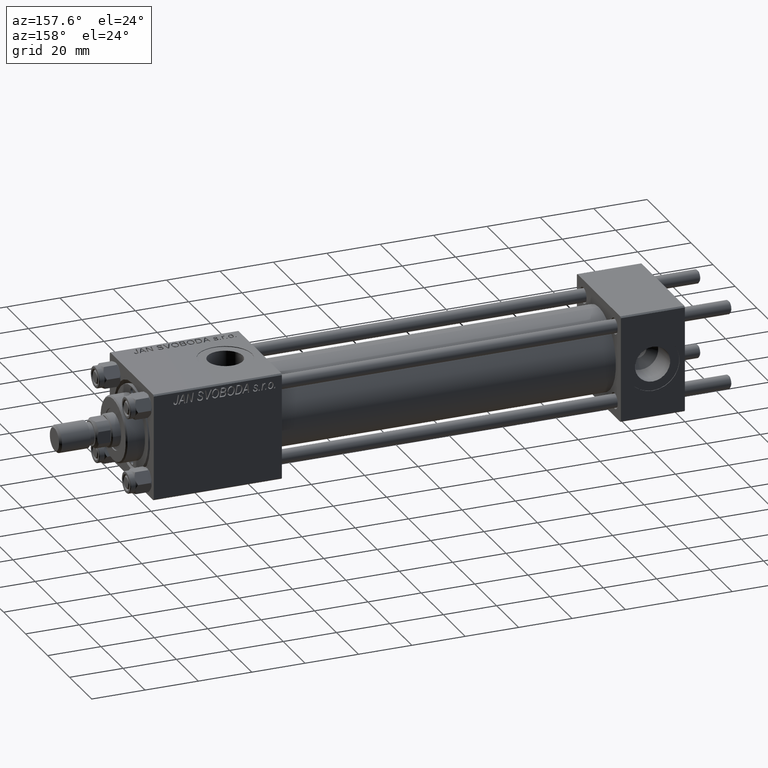
[diagram: clean part render]
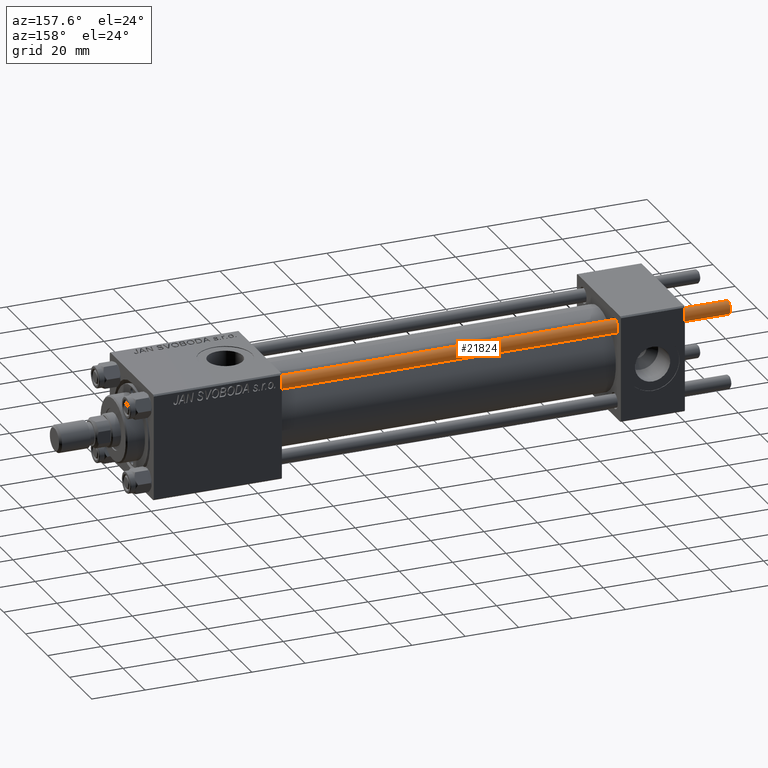
[diagram: same view with one face highlighted and labeled with its STEP entity id]
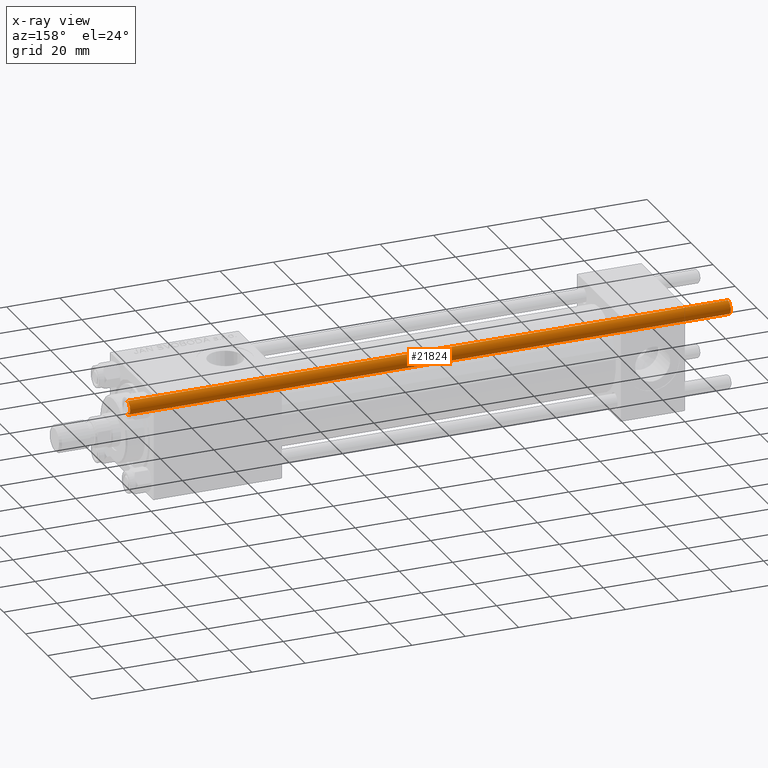
[diagram: x-ray of the same camera — body ghosted, the highlighted face saturated]
A machine part, auxiliary view. The second image highlights one B-rep face of the part: STEP entity #21824.
The next image is the same camera in x-ray: the body ghosted, the highlighted face saturated — about 0% of this face is hidden behind the body in this view.
In plain terms, the highlighted cylindrical surface (edge-blend (fillet) strip) has radius 2.5 mm, axis along (-1, -0, -0).
Its self-contained STEP definition (entity closure, byte-faithful):
#1157 = CARTESIAN_POINT ( 'NONE',  ( -2.500000000000000000, 0.000000000000000000, 0.4999999999999726885 ) ) ;
#2242 = VECTOR ( 'NONE', #22517, 1000.000000000000000 ) ;
#2816 = CARTESIAN_POINT ( 'NONE',  ( 2.500000000000000000, 3.061616997868383141E-16, 0.4999999999999726885 ) ) ;
#6344 = EDGE_CURVE ( 'NONE', #9066, #40798, #49192, .T. ) ;
#7356 = DIRECTION ( 'NONE',  ( -1.000000000000000000, 0.000000000000000000, 0.000000000000000000 ) ) ;
#8244 = CARTESIAN_POINT ( 'NONE',  ( -2.500000000000000000, 0.000000000000000000, 225.5000000000000284 ) ) ;
#8428 = DIRECTION ( 'NONE',  ( -0.000000000000000000, -0.000000000000000000, 1.000000000000000000 ) ) ;
#8906 = VECTOR ( 'NONE', #42282, 1000.000000000000000 ) ;
#9066 = VERTEX_POINT ( 'NONE', #2816 ) ;
#9195 = DIRECTION ( 'NONE',  ( 1.000000000000000000, 0.000000000000000000, 0.000000000000000000 ) ) ;
#9975 = ORIENTED_EDGE ( 'NONE', *, *, #17368, .F. ) ;
#11178 = FACE_OUTER_BOUND ( 'NONE', #11363, .T. ) ;
#11363 = EDGE_LOOP ( 'NONE', ( #15008, #36187, #43871, #9975 ) ) ;
#12122 = LINE ( 'NONE', #23580, #8906 ) ;
#13198 = CIRCLE ( 'NONE', #41701, 2.500000000000000000 ) ;
#14132 = CARTESIAN_POINT ( 'NONE',  ( -2.500000000000000000, 0.000000000000000000, 226.0000000000000000 ) ) ;
#15008 = ORIENTED_EDGE ( 'NONE', *, *, #45592, .T. ) ;
#17368 = EDGE_CURVE ( 'NONE', #25544, #40798, #49042, .T. ) ;
#21783 = EDGE_CURVE ( 'NONE', #40161, #9066, #12122, .T. ) ;
#21824 = ADVANCED_FACE ( 'NONE', ( #11178 ), #31479, .T. ) ;
#22393 = CARTESIAN_POINT ( 'NONE',  ( 0.000000000000000000, 0.000000000000000000, 226.0000000000000000 ) ) ;
#22517 = DIRECTION ( 'NONE',  ( -0.000000000000000000, -0.000000000000000000, -1.000000000000000000 ) ) ;
#23580 = CARTESIAN_POINT ( 'NONE',  ( 2.500000000000000000, 3.061616997868383141E-16, 226.0000000000000000 ) ) ;
#25544 = VERTEX_POINT ( 'NONE', #8244 ) ;
#26001 = AXIS2_PLACEMENT_3D ( 'NONE', #22393, #34118, #7356 ) ;
#27297 = CARTESIAN_POINT ( 'NONE',  ( 0.000000000000000000, 0.000000000000000000, 0.4999999999999726885 ) ) ;
#28820 = DIRECTION ( 'NONE',  ( 0.000000000000000000, 0.000000000000000000, -1.000000000000000000 ) ) ;
#31479 = CYLINDRICAL_SURFACE ( 'NONE', #26001, 2.500000000000000000 ) ;
#33984 = CARTESIAN_POINT ( 'NONE',  ( 2.500000000000000000, 3.061616997868383141E-16, 225.5000000000000284 ) ) ;
#34118 = DIRECTION ( 'NONE',  ( -0.000000000000000000, -0.000000000000000000, -1.000000000000000000 ) ) ;
#36187 = ORIENTED_EDGE ( 'NONE', *, *, #21783, .T. ) ;
#36472 = CARTESIAN_POINT ( 'NONE',  ( 0.000000000000000000, 0.000000000000000000, 225.5000000000000284 ) ) ;
#40161 = VERTEX_POINT ( 'NONE', #33984 ) ;
#40798 = VERTEX_POINT ( 'NONE', #1157 ) ;
#41701 = AXIS2_PLACEMENT_3D ( 'NONE', #36472, #28820, #9195 ) ;
#42282 = DIRECTION ( 'NONE',  ( -0.000000000000000000, -0.000000000000000000, -1.000000000000000000 ) ) ;
#42854 = DIRECTION ( 'NONE',  ( 1.000000000000000000, 0.000000000000000000, 0.000000000000000000 ) ) ;
#43871 = ORIENTED_EDGE ( 'NONE', *, *, #6344, .T. ) ;
#45592 = EDGE_CURVE ( 'NONE', #25544, #40161, #13198, .T. ) ;
#46769 = AXIS2_PLACEMENT_3D ( 'NONE', #27297, #8428, #42854 ) ;
#49042 = LINE ( 'NONE', #14132, #2242 ) ;
#49192 = CIRCLE ( 'NONE', #46769, 2.500000000000000000 ) ;